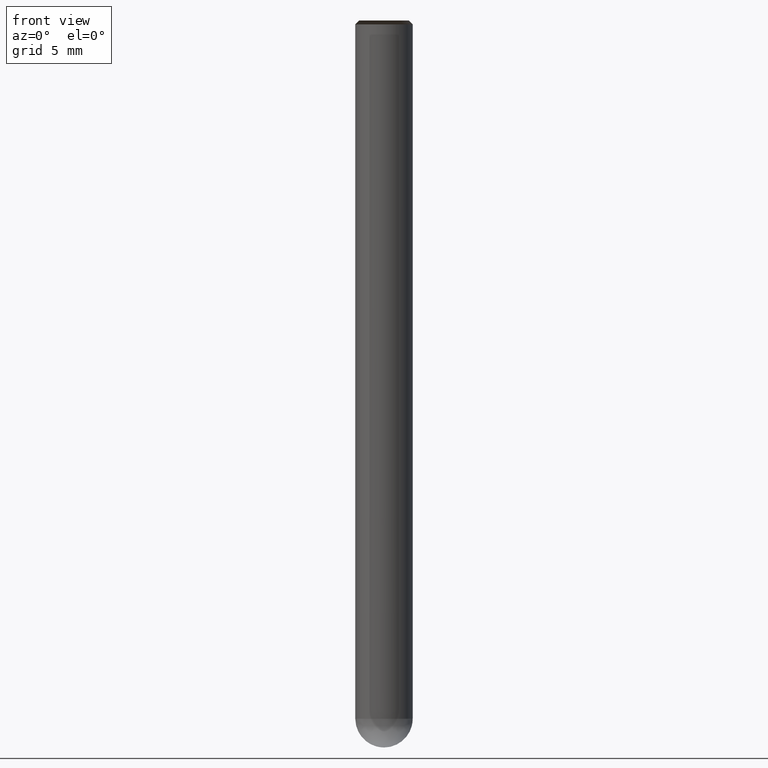
[diagram: clean part render]
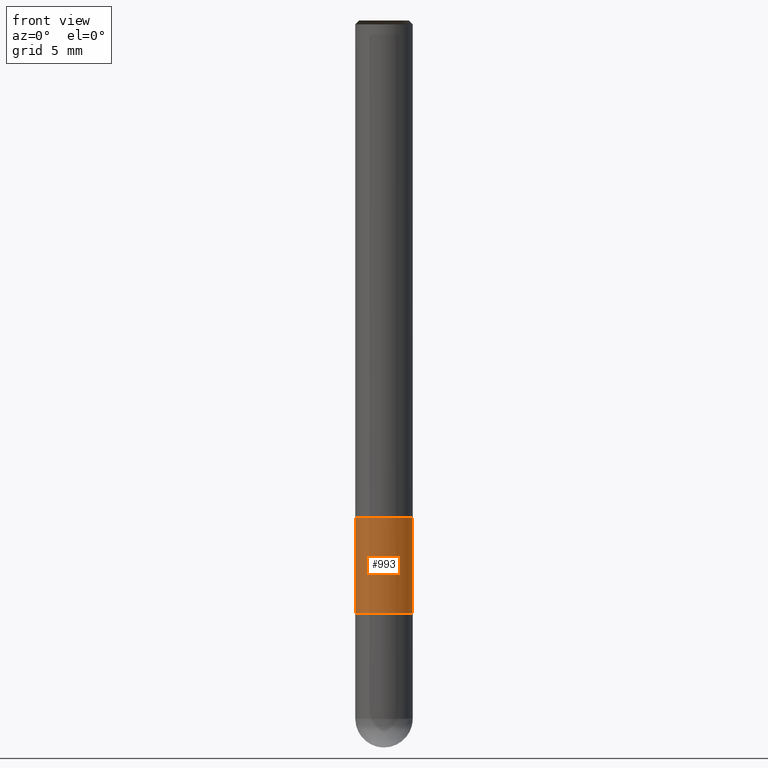
[diagram: same view with one face highlighted and labeled with its STEP entity id]
A machine part, front view. The second image highlights one B-rep face of the part: STEP entity #993.
In plain terms, the highlighted face is a freeform B-spline surface patch.
Its self-contained STEP definition (entity closure, byte-faithful):
#711=CARTESIAN_POINT('',(1.5,0.0,-5.0));
#715=CARTESIAN_POINT('',(-1.5,0.0,-5.0));
#723=CARTESIAN_POINT('',(-1.5,-1.5,-5.0));
#724=CARTESIAN_POINT('',(0.0,-1.5,-5.0));
#725=CARTESIAN_POINT('',(1.5,-1.5,-5.0));
#726=CARTESIAN_POINT('',(1.5,0.0,0.0));
#730=CARTESIAN_POINT('',(-1.5,0.0,0.0));
#742=CARTESIAN_POINT('',(-1.5,-1.5,0.0));
#743=CARTESIAN_POINT('',(0.0,-1.5,0.0));
#744=CARTESIAN_POINT('',(1.5,-1.5,0.0));
#974=(
BOUNDED_SURFACE()
B_SPLINE_SURFACE(1,2,(
(#715,#723,#724,#725,#711),
(#730,#742,#743,#744,#726)
), .UNSPECIFIED.,.F.,.F.,.F.)
B_SPLINE_SURFACE_WITH_KNOTS((2,2),(3,2,3),(
0.0,1.0),(
0.0,0.5,1.0), .UNSPECIFIED.)
GEOMETRIC_REPRESENTATION_ITEM()
RATIONAL_B_SPLINE_SURFACE(((1.0,0.707106781187,1.0,0.707106781187,1.0),
(1.0,0.707106781187,1.0,0.707106781187,1.0)
))
REPRESENTATION_ITEM('')
SURFACE()
);
#975=(
BOUNDED_CURVE()
B_SPLINE_CURVE(2,(#711,#725,#724,#723,#715),.UNSPECIFIED.,.F.,.F.)
B_SPLINE_CURVE_WITH_KNOTS((3,2,3),
(0.0,0.5,1.0),.UNSPECIFIED.)
CURVE()
GEOMETRIC_REPRESENTATION_ITEM()
RATIONAL_B_SPLINE_CURVE((1.0,0.707106781187,1.0,0.707106781187,1.0))
REPRESENTATION_ITEM('')
);
#976=(
BOUNDED_CURVE()
B_SPLINE_CURVE(1,(#715,#730),.UNSPECIFIED.,.F.,.F.)
B_SPLINE_CURVE_WITH_KNOTS((2,2),
(0.0,1.0),.UNSPECIFIED.)
CURVE()
GEOMETRIC_REPRESENTATION_ITEM()
RATIONAL_B_SPLINE_CURVE((1.0,1.0))
REPRESENTATION_ITEM('')
);
#977=(
BOUNDED_CURVE()
B_SPLINE_CURVE(2,(#730,#742,#743,#744,#726),.UNSPECIFIED.,.F.,.F.)
B_SPLINE_CURVE_WITH_KNOTS((3,2,3),
(0.0,0.5,1.0),.UNSPECIFIED.)
CURVE()
GEOMETRIC_REPRESENTATION_ITEM()
RATIONAL_B_SPLINE_CURVE((1.0,0.707106781187,1.0,0.707106781187,1.0))
REPRESENTATION_ITEM('')
);
#978=(
BOUNDED_CURVE()
B_SPLINE_CURVE(1,(#726,#711),.UNSPECIFIED.,.F.,.F.)
B_SPLINE_CURVE_WITH_KNOTS((2,2),
(0.0,1.0),.UNSPECIFIED.)
CURVE()
GEOMETRIC_REPRESENTATION_ITEM()
RATIONAL_B_SPLINE_CURVE((1.0,1.0))
REPRESENTATION_ITEM('')
);
#979=VERTEX_POINT('',#711);
#980=VERTEX_POINT('',#715);
#981=VERTEX_POINT('',#726);
#982=VERTEX_POINT('',#730);
#983=EDGE_CURVE('',#979,#980,#975,.T.);
#984=EDGE_CURVE('',#980,#982,#976,.T.);
#985=EDGE_CURVE('',#982,#981,#977,.T.);
#986=EDGE_CURVE('',#981,#979,#978,.T.);
#987=ORIENTED_EDGE('',*,*,#983,.T.);
#988=ORIENTED_EDGE('',*,*,#984,.T.);
#989=ORIENTED_EDGE('',*,*,#985,.T.);
#990=ORIENTED_EDGE('',*,*,#986,.T.);
#991=EDGE_LOOP('',(#987,#988,#989,#990));
#992=FACE_OUTER_BOUND('',#991,.T.);
#993=ADVANCED_FACE('',(#992),#974,.T.);